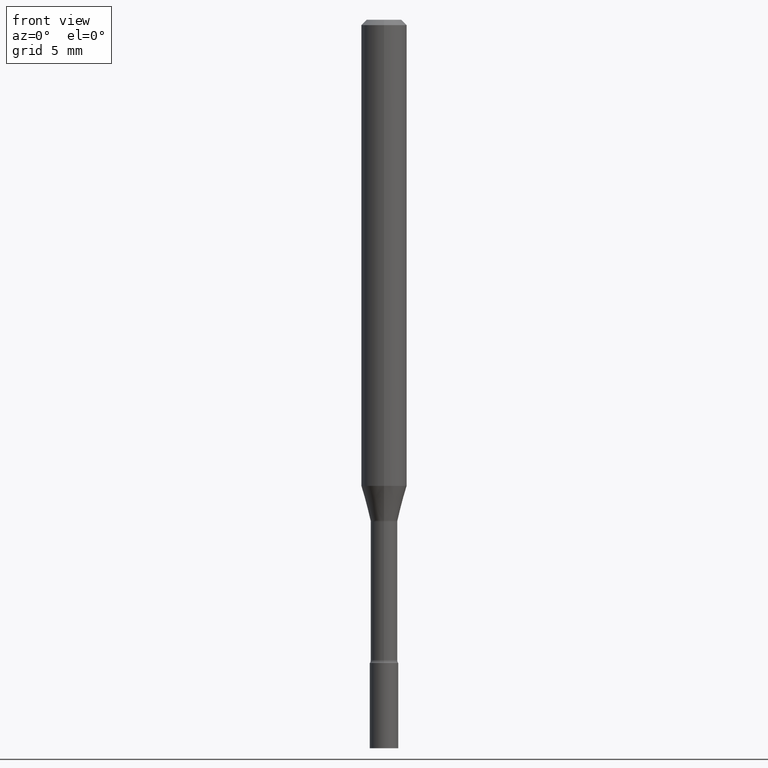
[diagram: clean part render]
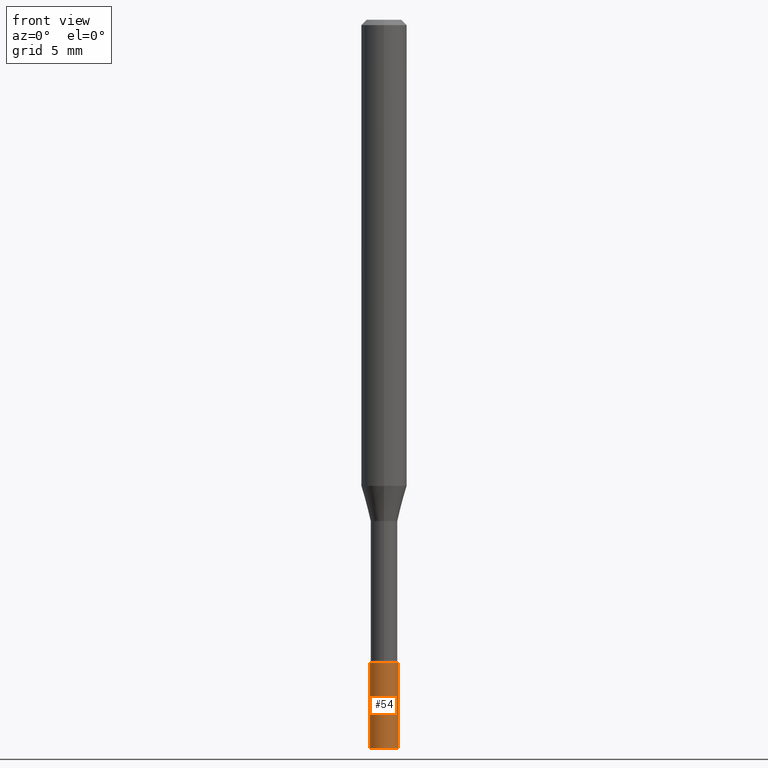
[diagram: same view with one face highlighted and labeled with its STEP entity id]
A machine part, front view. The second image highlights one B-rep face of the part: STEP entity #54.
In plain terms, the highlighted cylindrical surface (edge-blend (fillet) strip) has radius 0.9906 mm, axis along (-0, 0, 1).
Its self-contained STEP definition (entity closure, byte-faithful):
#2 = LINE ( 'NONE', #405, #481 ) ;
#21 = CARTESIAN_POINT ( 'NONE',  ( 0.000000000000000000, 0.000000000000000000, 0.000000000000000000 ) ) ;
#27 = CYLINDRICAL_SURFACE ( 'NONE', #380, 0.03899999999999999994 ) ;
#34 = ORIENTED_EDGE ( 'NONE', *, *, #191, .T. ) ;
#44 = EDGE_CURVE ( 'NONE', #131, #230, #220, .T. ) ;
#54 = ADVANCED_FACE ( 'NONE', ( #393 ), #27, .T. ) ;
#70 = CARTESIAN_POINT ( 'NONE',  ( 0.03899999999999999994, -7.255298222116054399E-15, -2.000000000000000000 ) ) ;
#108 = DIRECTION ( 'NONE',  ( -2.445468806185136597E-29, 3.491481338843145583E-15, 1.000000000000000000 ) ) ;
#131 = VERTEX_POINT ( 'NONE', #300 ) ;
#133 = EDGE_CURVE ( 'NONE', #131, #402, #234, .T. ) ;
#135 = EDGE_LOOP ( 'NONE', ( #384, #456, #34, #446 ) ) ;
#181 = CARTESIAN_POINT ( 'NONE',  ( -0.03899999999999999994, -6.297347694095203445E-15, -1.766000000000000014 ) ) ;
#191 = EDGE_CURVE ( 'NONE', #402, #286, #2, .T. ) ;
#192 = DIRECTION ( 'NONE',  ( 1.000000000000000000, -6.982962677686258033E-15, 0.000000000000000000 ) ) ;
#193 = DIRECTION ( 'NONE',  ( 1.000000000000000000, -6.982962677686265922E-15, 4.876176775795935793E-29 ) ) ;
#220 = LINE ( 'NONE', #433, #492 ) ;
#226 = DIRECTION ( 'NONE',  ( -2.445468806185136597E-29, 3.491481338843145583E-15, 1.000000000000000000 ) ) ;
#230 = VERTEX_POINT ( 'NONE', #181 ) ;
#234 = CIRCLE ( 'NONE', #452, 0.03899999999999999994 ) ;
#241 = AXIS2_PLACEMENT_3D ( 'NONE', #467, #505, #425 ) ;
#284 = CARTESIAN_POINT ( 'NONE',  ( 0.03899999999999999994, -6.438291588826759175E-15, -1.766000000000000014 ) ) ;
#286 = VERTEX_POINT ( 'NONE', #284 ) ;
#291 = DIRECTION ( 'NONE',  ( -2.445468806185136877E-29, 3.491481338843145188E-15, 1.000000000000000000 ) ) ;
#300 = CARTESIAN_POINT ( 'NONE',  ( -0.03899999999999999994, -6.297347694095203445E-15, -2.000000000000000000 ) ) ;
#316 = DIRECTION ( 'NONE',  ( -2.445468806185136877E-29, 3.491481338843145188E-15, 1.000000000000000000 ) ) ;
#380 = AXIS2_PLACEMENT_3D ( 'NONE', #21, #108, #193 ) ;
#384 = ORIENTED_EDGE ( 'NONE', *, *, #44, .F. ) ;
#393 = FACE_OUTER_BOUND ( 'NONE', #135, .T. ) ;
#394 = CARTESIAN_POINT ( 'NONE',  ( 4.890937612370273194E-29, -6.982962677686291165E-15, -2.000000000000000000 ) ) ;
#402 = VERTEX_POINT ( 'NONE', #70 ) ;
#405 = CARTESIAN_POINT ( 'NONE',  ( 0.03899999999999999994, -2.723355444297643682E-16, 1.901708942560414931E-30 ) ) ;
#425 = DIRECTION ( 'NONE',  ( 1.000000000000000000, -6.982962677686258033E-15, 0.000000000000000000 ) ) ;
#433 = CARTESIAN_POINT ( 'NONE',  ( -0.03899999999999999994, 2.771116669464390721E-16, -1.918384685199413078E-30 ) ) ;
#446 = ORIENTED_EDGE ( 'NONE', *, *, #520, .F. ) ;
#452 = AXIS2_PLACEMENT_3D ( 'NONE', #394, #226, #192 ) ;
#456 = ORIENTED_EDGE ( 'NONE', *, *, #133, .T. ) ;
#467 = CARTESIAN_POINT ( 'NONE',  ( 4.318697911722950844E-29, -6.165956044396995152E-15, -1.766000000000000014 ) ) ;
#481 = VECTOR ( 'NONE', #316, 39.37007874015748143 ) ;
#482 = CIRCLE ( 'NONE', #241, 0.03899999999999999994 ) ;
#492 = VECTOR ( 'NONE', #291, 39.37007874015748143 ) ;
#505 = DIRECTION ( 'NONE',  ( -2.445468806185136597E-29, 3.491481338843145583E-15, 1.000000000000000000 ) ) ;
#520 = EDGE_CURVE ( 'NONE', #230, #286, #482, .T. ) ;